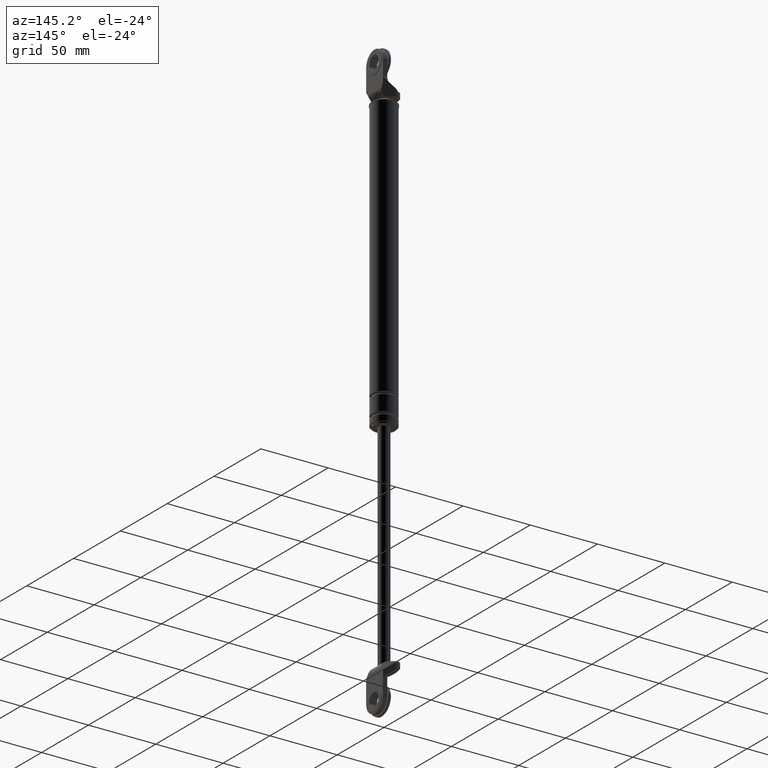
[diagram: clean part render]
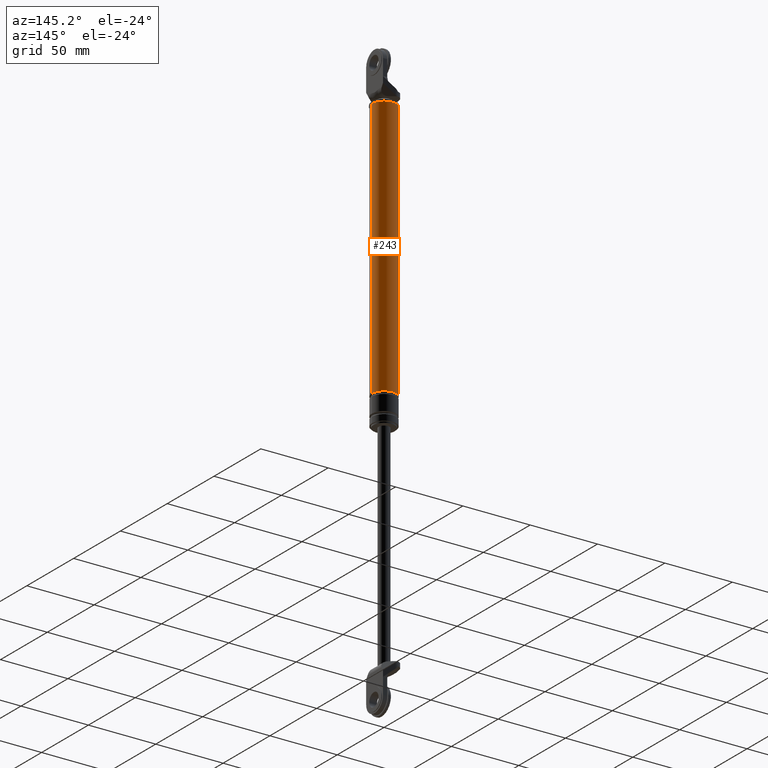
[diagram: same view with one face highlighted and labeled with its STEP entity id]
A machine part, auxiliary view. The second image highlights one B-rep face of the part: STEP entity #243.
In plain terms, the highlighted cylindrical surface (edge-blend (fillet) strip) has radius 9 mm, axis along (0, 0, 1).
Its self-contained STEP definition (entity closure, byte-faithful):
#243=ADVANCED_FACE('',(#685),#684,.T.);
#684=CYLINDRICAL_SURFACE('',#1402,9.00000000000E+000);
#685=FACE_OUTER_BOUND('',#1403,.T.);
#1399=CARTESIAN_POINT('',(0.00000000000E+000,3.58204186421E-014,0.00000000000E+000));
#1400=DIRECTION('',(-0.00000000000E+000,-0.00000000000E+000,1.00000000000E+000));
#1401=DIRECTION('',(1.00000000000E+000,-0.00000000000E+000,-0.00000000000E+000));
#1402=AXIS2_PLACEMENT_3D('',#1399,#1400,#1401);
#1403=EDGE_LOOP('',(#1950,#1951,#1952,#1953));
#1950=ORIENTED_EDGE('',*,*,#2236,.F.);
#1951=ORIENTED_EDGE('',*,*,#2259,.F.);
#1952=ORIENTED_EDGE('',*,*,#2260,.F.);
#1953=ORIENTED_EDGE('',*,*,#2261,.T.);
#2236=EDGE_CURVE('',#2881,#2882,#2883,.T.);
#2259=EDGE_CURVE('',#3032,#2881,#3033,.T.);
#2260=EDGE_CURVE('',#3039,#3032,#3040,.T.);
#2261=EDGE_CURVE('',#3039,#2882,#3046,.T.);
#2881=VERTEX_POINT('',#3998);
#2882=VERTEX_POINT('',#3999);
#2883=CIRCLE('',#4003,9.00000000000E+000);
#3032=VERTEX_POINT('',#4093);
#3033=(BOUNDED_CURVE() B_SPLINE_CURVE(1,(#4094,#4095),.UNSPECIFIED.,.F.,.F.) B_SPLINE_CURVE_WITH_KNOTS((2,2),(4.68823252246E-002,9.53117674498E-001),.UNSPECIFIED.) CURVE() GEOMETRIC_REPRESENTATION_ITEM() RATIONAL_B_SPLINE_CURVE((1.00000000000E+000,1.00000000000E+000)) REPRESENTATION_ITEM('') );
#3039=VERTEX_POINT('',#4096);
#3040=CIRCLE('',#4100,9.00000000000E+000);
#3046=(BOUNDED_CURVE() B_SPLINE_CURVE(1,(#4101,#4102),.UNSPECIFIED.,.F.,.F.) B_SPLINE_CURVE_WITH_KNOTS((2,2),(4.68823253633E-002,9.53117674637E-001),.UNSPECIFIED.) CURVE() GEOMETRIC_REPRESENTATION_ITEM() RATIONAL_B_SPLINE_CURVE((7.50000000000E-001,7.50000000000E-001)) REPRESENTATION_ITEM('') );
#3998=CARTESIAN_POINT('',(9.00000000000E+000,3.58204186421E-014,8.52999850000E+001));
#3999=CARTESIAN_POINT('',(-9.00000000000E+000,3.61192557345E-014,8.52999850000E+001));
#4000=CARTESIAN_POINT('',(0.00000000000E+000,3.58204186421E-014,8.52999850000E+001));
#4001=DIRECTION('',(0.00000000000E+000,0.00000000000E+000,1.00000000000E+000));
#4002=DIRECTION('',(1.00000000000E+000,-1.22460635382E-016,0.00000000000E+000));
#4003=AXIS2_PLACEMENT_3D('',#4000,#4001,#4002);
#4093=CARTESIAN_POINT('',(9.00000000000E+000,3.61192557345E-014,-1.08000015000E+002));
#4094=CARTESIAN_POINT('',(9.00000000000E+000,3.58204186421E-014,-1.08000015030E+002));
#4095=CARTESIAN_POINT('',(9.00000000000E+000,3.58204186421E-014,8.52999849704E+001));
#4096=CARTESIAN_POINT('',(-9.00000000000E+000,3.58204186421E-014,-1.08000015000E+002));
#4097=CARTESIAN_POINT('',(0.00000000000E+000,3.58204186421E-014,-1.08000015000E+002));
#4098=DIRECTION('',(-0.00000000000E+000,0.00000000000E+000,-1.00000000000E+000));
#4099=DIRECTION('',(-1.00000000000E+000,-1.22460635382E-016,0.00000000000E+000));
#4100=AXIS2_PLACEMENT_3D('',#4097,#4098,#4099);
#4101=CARTESIAN_POINT('',(-9.00000000000E+000,3.52310773148E-014,-1.08000015000E+002));
#4102=CARTESIAN_POINT('',(-9.00000000000E+000,3.52310773148E-014,8.52999850000E+001));